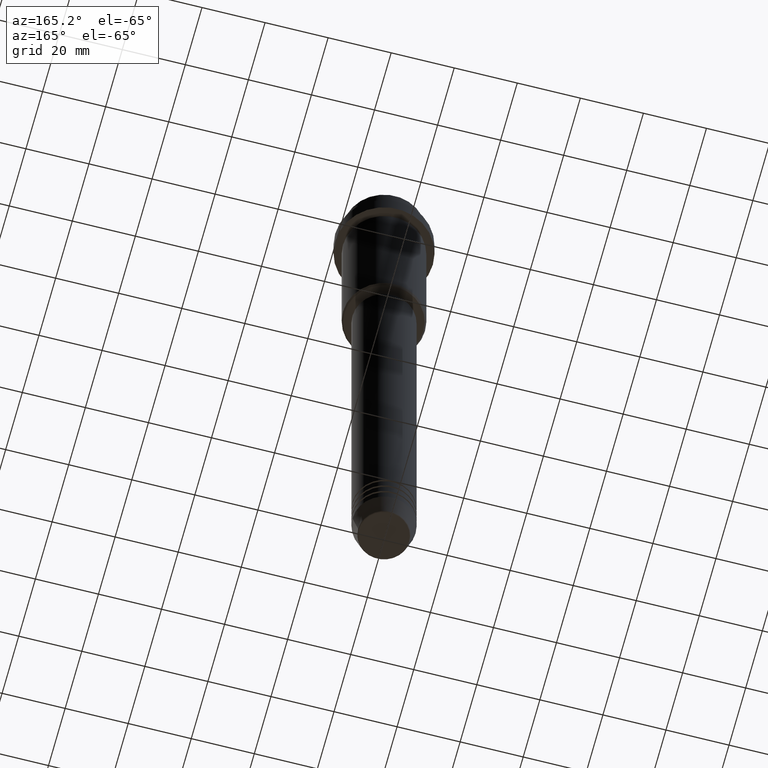
[diagram: clean part render]
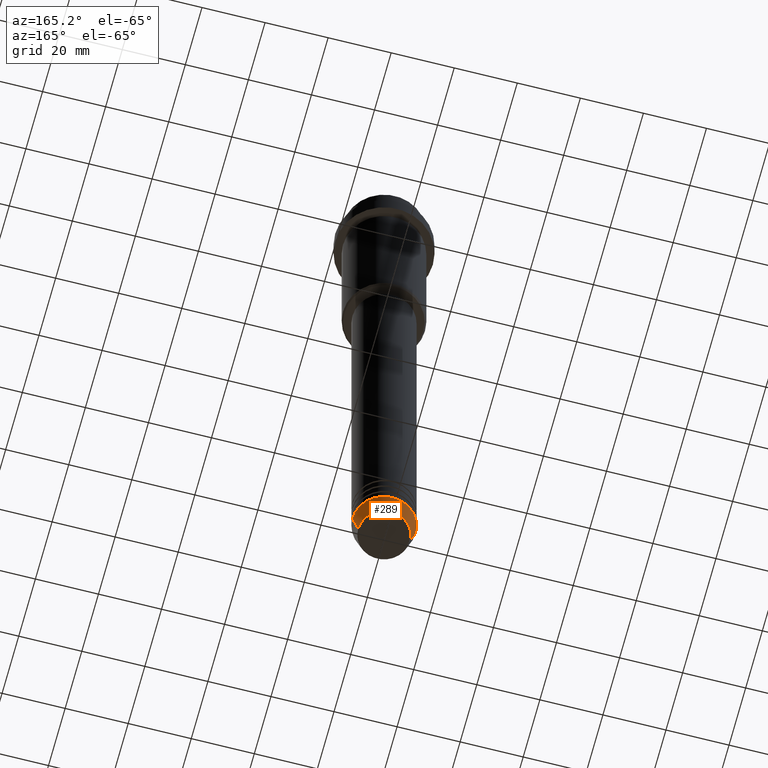
[diagram: same view with one face highlighted and labeled with its STEP entity id]
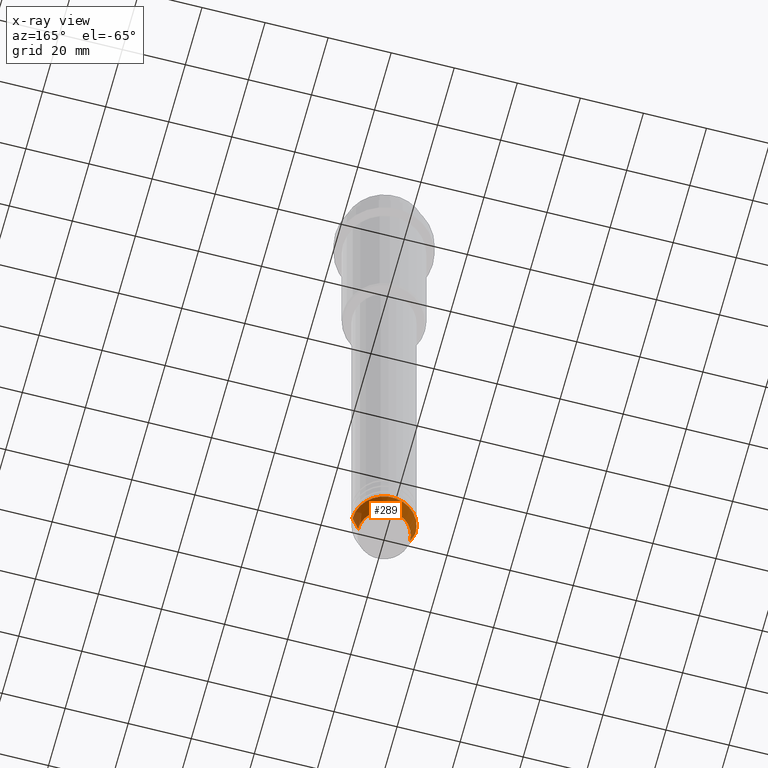
[diagram: x-ray of the same camera — body ghosted, the highlighted face saturated]
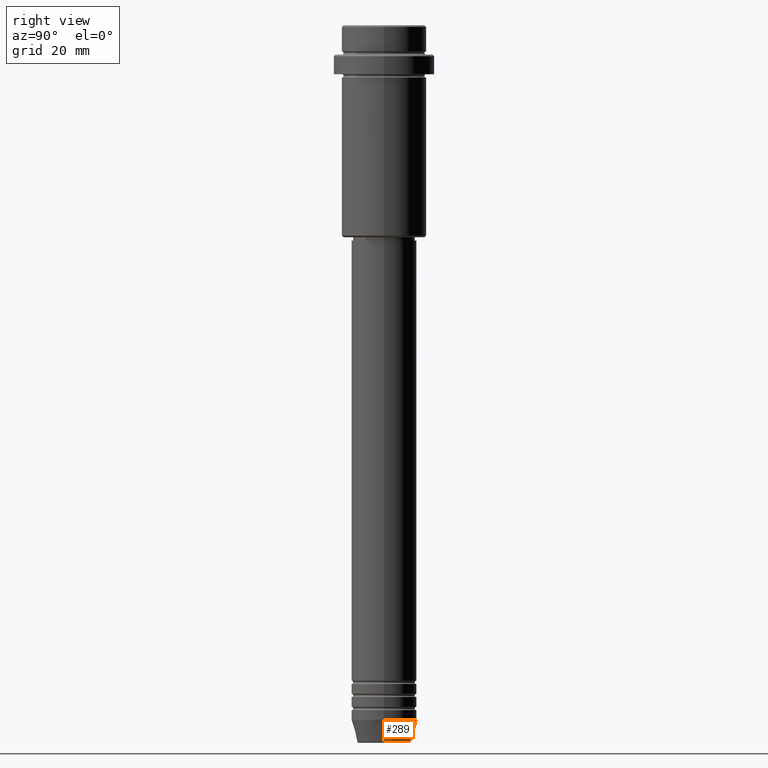
[diagram: same view with one face highlighted and labeled with its STEP entity id]
A machine part, auxiliary view. The second image highlights one B-rep face of the part: STEP entity #289.
The next image is the same camera in x-ray: the body ghosted, the highlighted face saturated — about 0% of this face is hidden behind the body in this view.
A second angle (right view) of the same face is appended — the face is thin or edge-on in the first view.
In plain terms, the highlighted conical surface has half-angle 15 deg.
Its self-contained STEP definition (entity closure, byte-faithful):
#5 = CARTESIAN_POINT ( 'NONE',  ( 0.000000000000000000, 0.000000000000000000, -212.9999999999999716 ) ) ;
#27 = EDGE_CURVE ( 'NONE', #1226, #1376, #1380, .T. ) ;
#77 = DIRECTION ( 'NONE',  ( -0.000000000000000000, -0.000000000000000000, 1.000000000000000000 ) ) ;
#97 = EDGE_CURVE ( 'NONE', #1226, #273, #600, .T. ) ;
#149 = CONICAL_SURFACE ( 'NONE', #1272, 10.00000000000000000, 0.2617993877991502405 ) ;
#162 = DIRECTION ( 'NONE',  ( 0.2588190451025214611, 0.000000000000000000, 0.9659258262890679791 ) ) ;
#273 = VERTEX_POINT ( 'NONE', #342 ) ;
#289 = ADVANCED_FACE ( 'NONE', ( #1100 ), #149, .T. ) ;
#296 = VECTOR ( 'NONE', #823, 1000.000000000000114 ) ;
#334 = DIRECTION ( 'NONE',  ( 1.000000000000000000, 0.000000000000000000, 0.000000000000000000 ) ) ;
#342 = CARTESIAN_POINT ( 'NONE',  ( 10.00000000000000000, 0.000000000000000000, -212.9999999999999716 ) ) ;
#379 = CARTESIAN_POINT ( 'NONE',  ( -10.00000000000000000, 1.224646799147353256E-15, -212.9999999999999716 ) ) ;
#441 = ORIENTED_EDGE ( 'NONE', *, *, #550, .F. ) ;
#538 = DIRECTION ( 'NONE',  ( -0.000000000000000000, -0.000000000000000000, 1.000000000000000000 ) ) ;
#550 = EDGE_CURVE ( 'NONE', #273, #866, #860, .T. ) ;
#589 = VECTOR ( 'NONE', #162, 1000.000000000000114 ) ;
#600 = LINE ( 'NONE', #1352, #589 ) ;
#649 = DIRECTION ( 'NONE',  ( 1.000000000000000000, 0.000000000000000000, 0.000000000000000000 ) ) ;
#691 = ORIENTED_EDGE ( 'NONE', *, *, #27, .T. ) ;
#718 = ORIENTED_EDGE ( 'NONE', *, *, #1259, .T. ) ;
#747 = AXIS2_PLACEMENT_3D ( 'NONE', #1061, #77, #1085 ) ;
#757 = DIRECTION ( 'NONE',  ( -0.000000000000000000, -0.000000000000000000, 1.000000000000000000 ) ) ;
#823 = DIRECTION ( 'NONE',  ( -0.2588190451025214611, 3.169619151431774186E-17, 0.9659258262890679791 ) ) ;
#849 = ORIENTED_EDGE ( 'NONE', *, *, #97, .F. ) ;
#860 = CIRCLE ( 'NONE', #747, 10.00000000000000000 ) ;
#866 = VERTEX_POINT ( 'NONE', #379 ) ;
#881 = AXIS2_PLACEMENT_3D ( 'NONE', #1379, #538, #649 ) ;
#994 = CARTESIAN_POINT ( 'NONE',  ( -8.223655072137189492, 1.115877042642911856E-15, -219.6294095225512137 ) ) ;
#1061 = CARTESIAN_POINT ( 'NONE',  ( 0.000000000000000000, 0.000000000000000000, -212.9999999999999716 ) ) ;
#1085 = DIRECTION ( 'NONE',  ( 1.000000000000000000, 0.000000000000000000, 0.000000000000000000 ) ) ;
#1100 = FACE_OUTER_BOUND ( 'NONE', #1155, .T. ) ;
#1155 = EDGE_LOOP ( 'NONE', ( #691, #718, #441, #849 ) ) ;
#1168 = CARTESIAN_POINT ( 'NONE',  ( 8.223655072137189492, 0.000000000000000000, -219.6294095225512137 ) ) ;
#1226 = VERTEX_POINT ( 'NONE', #1168 ) ;
#1259 = EDGE_CURVE ( 'NONE', #1376, #866, #1389, .T. ) ;
#1272 = AXIS2_PLACEMENT_3D ( 'NONE', #5, #757, #334 ) ;
#1281 = CARTESIAN_POINT ( 'NONE',  ( -10.00000000000000000, 1.224646799147353256E-15, -212.9999999999999716 ) ) ;
#1352 = CARTESIAN_POINT ( 'NONE',  ( 10.00000000000000000, 0.000000000000000000, -212.9999999999999716 ) ) ;
#1376 = VERTEX_POINT ( 'NONE', #994 ) ;
#1379 = CARTESIAN_POINT ( 'NONE',  ( 0.000000000000000000, 0.000000000000000000, -219.6294095225512137 ) ) ;
#1380 = CIRCLE ( 'NONE', #881, 8.223655072137189492 ) ;
#1389 = LINE ( 'NONE', #1281, #296 ) ;